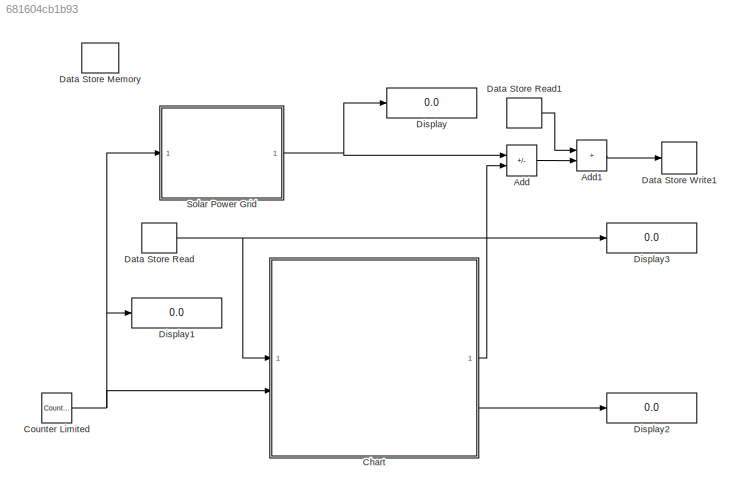
MODEL slx_681604cb1b93
KIND model
CONFIG AbsTol = auto
CONFIG EnableMultiTasking = off
CONFIG FixedStep = auto
CONFIG MaxStep = auto
CONFIG MinStep = auto
CONFIG RelTol = 1e-3
CONFIG SampleTimeConstraint = Unconstrained
CONFIG SolverName = VariableStepAuto
CONFIG StartTime = 0.0
CONFIG StopTime = 24*3600
BLOCK [Sum] Add
  IconShape = rectangular
  Inputs = +-
BLOCK [Sum] Add1
  IconShape = rectangular
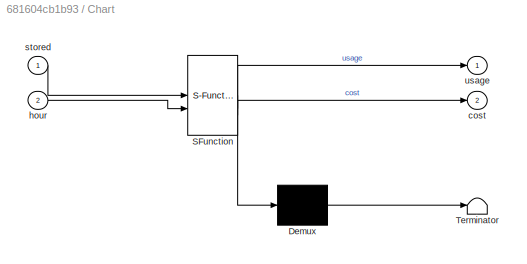
BLOCK [SubSystem] Chart
  ErrorFcn = Stateflow.Translate.translate
  PermitHierarchicalResolution = ExplicitOnly
  SFBlockType = Chart
  TreatAsAtomicUnit = on
BLOCK [Demux] Chart/ Demux 
  Outputs = 1
BLOCK [S-Function] Chart/ SFunction 
  EnableBusSupport = on
  FunctionName = sf_sfun
  PortCounts = [2 3]
  SFcnIsStateOwnerBlock = off
  SFunctionDeploymentMode = off
  Tag = Stateflow S-Function 3
BLOCK [Terminator] Chart/ Terminator 
BLOCK [Outport] Chart/cost
  Port = 2
BLOCK [Inport] Chart/hour
  Port = 2
BLOCK [Inport] Chart/stored
BLOCK [Outport] Chart/usage
BLOCK [Reference] Counter Limited  REF=simulink/Sources/Counter
Limited
  SourceBlock = simulink/Sources/Counter\nLimited
  SourceType = Counter Limited
BLOCK [DataStoreMemory] Data Store Memory
  DataStoreName = Battery
  ShowAdditionalParam = off
  WriteAfterWriteMsg = warning
BLOCK [DataStoreRead] Data Store Read
  DataStoreName = Battery
  IndexOptions = Index vector (dialog)
  Indices = 1
  OutputSizes = 1
BLOCK [DataStoreRead] Data Store Read1
  DataStoreName = Battery
  IndexOptions = Index vector (dialog)
  Indices = 1
  OutputSizes = 1
BLOCK [DataStoreWrite] Data Store Write1
  DataStoreName = Battery
  IndexOptions = Index vector (dialog)
  Indices = 1
  OutputSizes = 1
BLOCK [Display] Display
  Decimation = 1
BLOCK [Display] Display1
  Decimation = 1
BLOCK [Display] Display2
  Decimation = 1
BLOCK [Display] Display3
  Decimation = 1
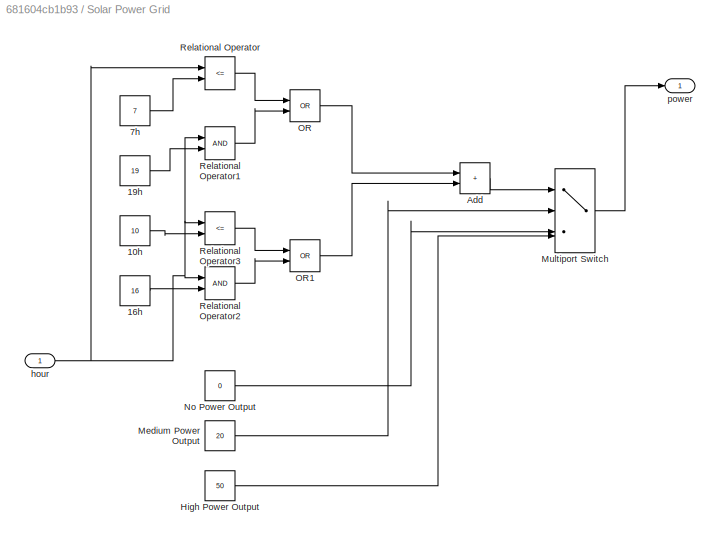
BLOCK [SubSystem] Solar Power Grid
BLOCK [Constant] Solar Power Grid/10h
  Value = 10
BLOCK [Constant] Solar Power Grid/16h
  Value = 16
BLOCK [Constant] Solar Power Grid/19h
  Value = 19
BLOCK [Constant] Solar Power Grid/7h
  Value = 7
BLOCK [Sum] Solar Power Grid/Add
  IconShape = rectangular
  InputSameDT = on
BLOCK [Constant] Solar Power Grid/High Power Output
  Value = 50
BLOCK [Constant] Solar Power Grid/Medium Power Output
  Value = 20
BLOCK [MultiPortSwitch] Solar Power Grid/Multiport Switch
  DataPortIndices = {1,2,0}
  DataPortOrder = Specify indices
  InputSameDT = off
  SaturateOnIntegerOverflow = off
BLOCK [Constant] Solar Power Grid/No Power Output
  Value = 0
BLOCK [Logic] Solar Power Grid/OR
  AllPortsSameDT = off
  IconShape = distinctive
  Operator = OR
  OutDataTypeStr = boolean
BLOCK [Logic] Solar Power Grid/OR1
  AllPortsSameDT = off
  IconShape = distinctive
  Operator = OR
  OutDataTypeStr = boolean
BLOCK [RelationalOperator] Solar Power Grid/Relational Operator
  InputSameDT = off
  Operator = <=
  OutDataTypeStr = boolean
  RndMeth = Simplest
BLOCK [RelationalOperator] Solar Power Grid/Relational Operator1
  InputSameDT = off
  OutDataTypeStr = boolean
  RndMeth = Simplest
BLOCK [RelationalOperator] Solar Power Grid/Relational Operator2
  InputSameDT = off
  OutDataTypeStr = boolean
  RndMeth = Simplest
BLOCK [RelationalOperator] Solar Power Grid/Relational Operator3
  InputSameDT = off
  Operator = <=
  OutDataTypeStr = boolean
  RndMeth = Simplest
BLOCK [Inport] Solar Power Grid/hour
BLOCK [Outport] Solar Power Grid/power
  OutMax = 0
  OutMin = 0
LINE Add1:1 -> Data Store Write1:1
LINE Add:1 -> Add1:2
LINE Chart:1 -> Add:2
LINE Chart:2 -> Display2:1
NET Counter Limited:1 -> Chart:2, Display1:1, Solar Power Grid:1
LINE Data Store Read1:1 -> Add1:1
NET Data Store Read:1 -> Chart:1, Display3:1
LINE Solar Power Grid/10h:1 -> Solar Power Grid/Relational Operator3:2
LINE Solar Power Grid/16h:1 -> Solar Power Grid/Relational Operator2:2
LINE Solar Power Grid/19h:1 -> Solar Power Grid/Relational Operator1:2
LINE Solar Power Grid/7h:1 -> Solar Power Grid/Relational Operator:2
LINE Solar Power Grid/Add:1 -> Solar Power Grid/Multiport Switch:1
LINE Solar Power Grid/High Power Output:1 -> Solar Power Grid/Multiport Switch:4
LINE Solar Power Grid/Medium Power Output:1 -> Solar Power Grid/Multiport Switch:2
LINE Solar Power Grid/Multiport Switch:1 -> Solar Power Grid/power:1
LINE Solar Power Grid/No Power Output:1 -> Solar Power Grid/Multiport Switch:3
LINE Solar Power Grid/OR1:1 -> Solar Power Grid/Add:2
LINE Solar Power Grid/OR:1 -> Solar Power Grid/Add:1
LINE Solar Power Grid/Relational Operator1:1 -> Solar Power Grid/OR:2
LINE Solar Power Grid/Relational Operator2:1 -> Solar Power Grid/OR1:2
LINE Solar Power Grid/Relational Operator3:1 -> Solar Power Grid/OR1:1
LINE Solar Power Grid/Relational Operator:1 -> Solar Power Grid/OR:1
NET Solar Power Grid/hour:1 -> Solar Power Grid/Relational Operator1:1, Solar Power Grid/Relational Operator2:1, Solar Power Grid/Relational Operator3:1, Solar Power Grid/Relational Operator:1
NET Solar Power Grid:1 -> Add:1, Display:1
note: NET lines group one-source signal fan-out (src -> all destinations, sorted); 1:1 wires keep LINE
CHART Chart states=6 transitions=11
  STATE_LABEL 'usageTime\n'
  STATE_LABEL 'offPeak'
  STATE_LABEL 'peak'
  STATE_LABEL '[hour >=18 || hour < 6]'
  STATE_LABEL '[hour >= 6 && hour < 18]'
  STATE_LABEL 'offPeak'
  STATE_LABEL 'peak'
  STATE_LABEL 'usageType'
  STATE_LABEL 'useGrid\n'
  STATE_LABEL '[in(usageTime.peak)]'
  STATE_LABEL '{cost = cost + 15;}'
  STATE_LABEL '{cost = cost + 10;}'
  STATE_LABEL 'useBattery\nentry:\n usage = 40;\nexit:\n usage = 0;'
  STATE_LABEL '{cost = 0;}'
  STATE_LABEL '[stored > 80]'
  STATE_LABEL '[stored < 40]'
  STATE_LABEL 'useGrid\n'
  STATE_LABEL '[in(usageTime.peak)]'
  STATE_LABEL '{cost = cost + 15;}'
  STATE_LABEL '{cost = cost + 10;}'
  STATE_LABEL 'useBattery\nentry:\n usage = 40;\nexit:\n usage = 0;'
CHART  states=0 transitions=0
